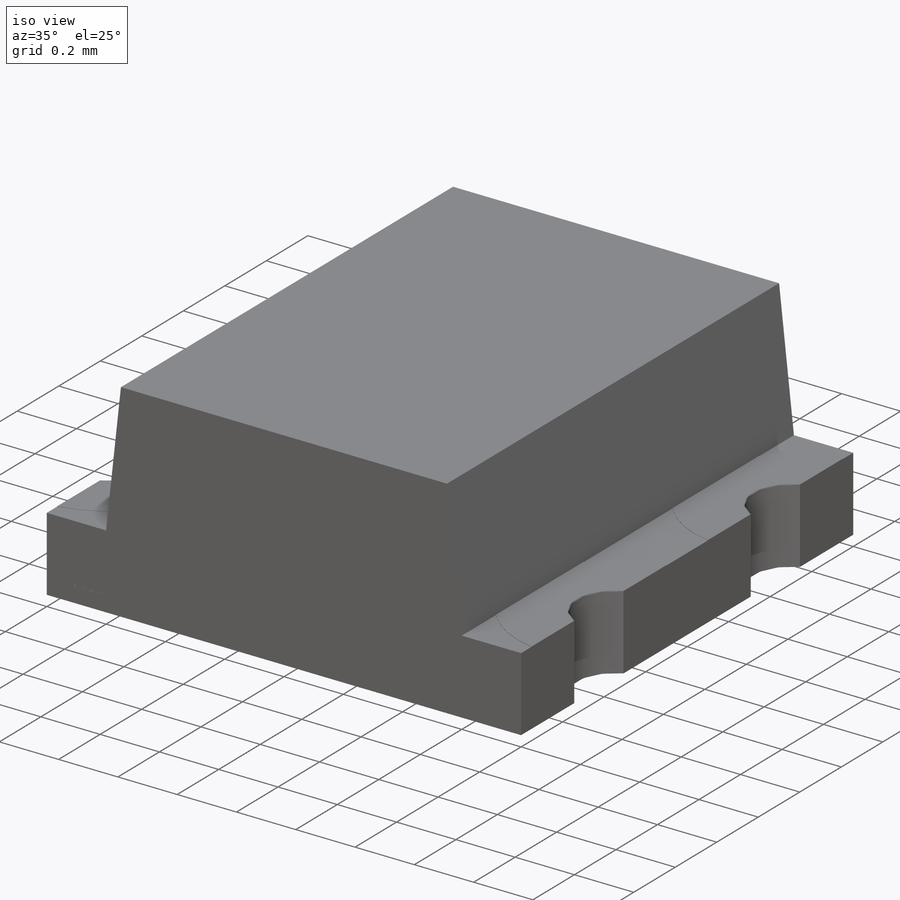
[diagram: iso view]
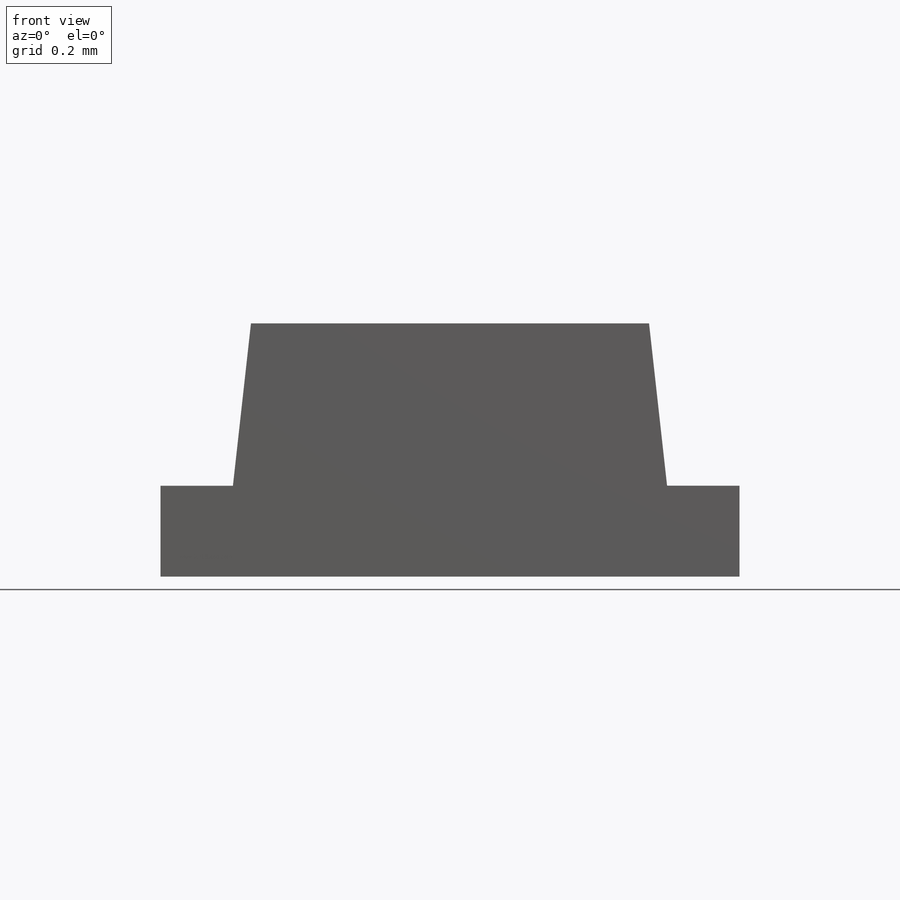
[diagram: front view]
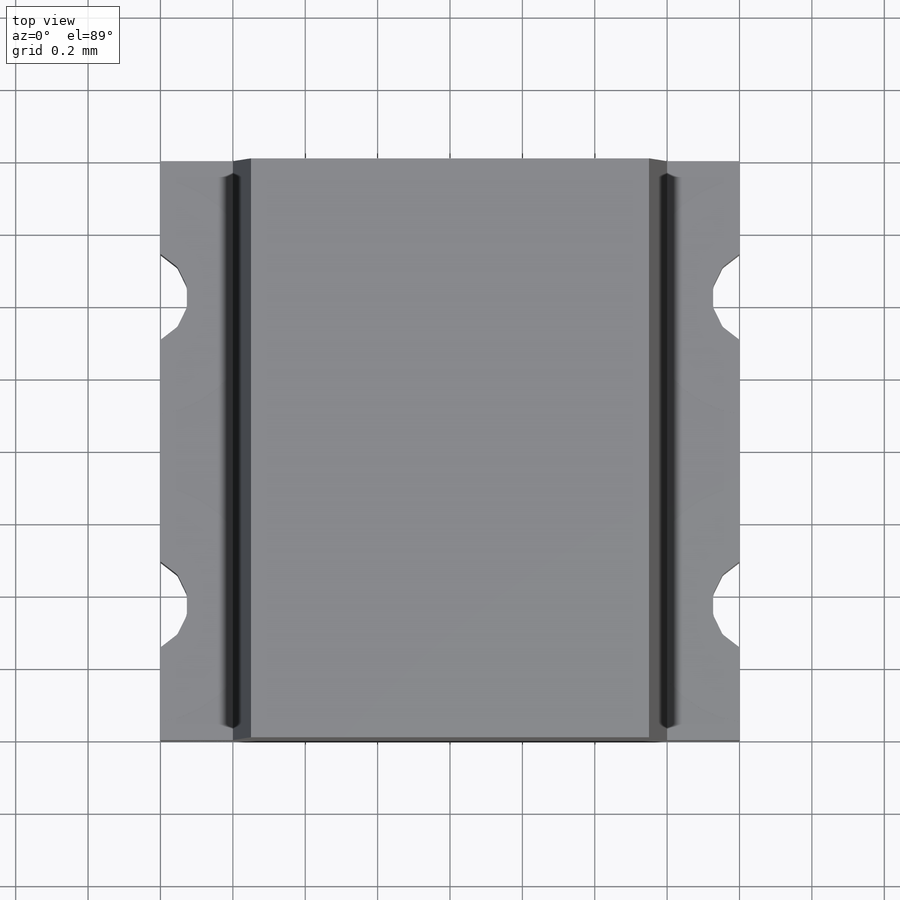
[diagram: top view]
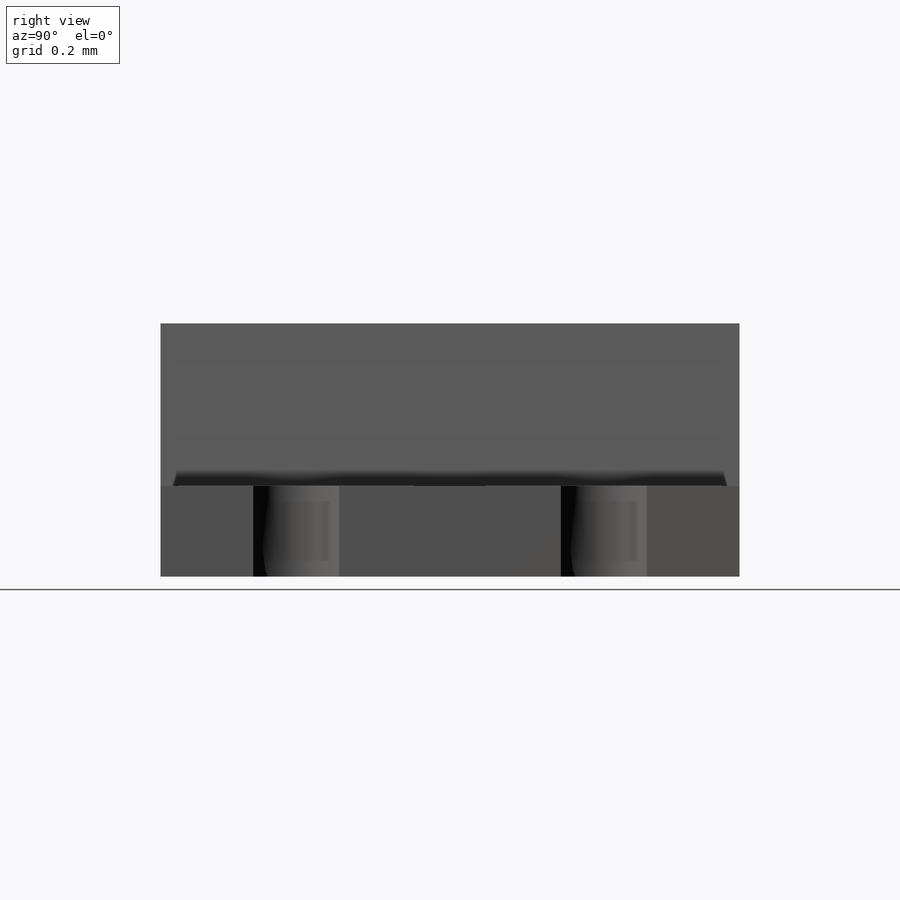
[diagram: right view]
SOLIDWORKS PART (.sldprt)
format: sldprt  version: not decoded by parser v0  size: 634,880 bytes
history: native  units: mm
features: sketch x7, extrude x5, cut_extrude x2, material x1 (+11 scaffold rows collapsed)
feature tree (26):
  scaffold x11  (default folders/planes/origin — collapsed)
  material  "Material <not specified>"
  sketch  "Sketch1"  dims[D1=0.25mm D2=1.6mm D3=1.1mm D4=1.2mm D5=0.7mm]
  extrude  "Extrude1"  Depth=1.6mm
  extrude  "Extrude2"  [1 undecoded]
  sketch  "Sketch1<3>"  dims[D1=1.6mm]
  sketch  "Sketch2"  dims[c1.D3=0.075mm c1.D1=0.65mm c1.D2=0.35mm c1.D4=0.85mm c2.D1=0.35mm c2.D2=0.65mm c2.D3=0.05mm]
  extrude  "Extrude3"  Depth=0.01mm
  extrude  "Extrude4"  [1 undecoded]
  sketch  "Sketch2<3>"  dims[D1=0.01mm D2=0.0001mm]
  cut_extrude  "Cut-Extrude2"  [1 undecoded]
  sketch  "Sketch2<4>"
  sketch  "Sketch3"  dims[D1=0.25mm D2=0.05mm]
  sketch  "Sketch4"  dims[D3=~0.001019mm D1=0.0mm D2=0.2mm]
  extrude  "Extrude5"  Depth=0.01mm
  cut_extrude  "Cut-Extrude3"  Depth=0.001mm
decode coverage: 10 of 14 modeling features carry decoded parameters
note: ~ marks probable driven/reference dimensions
note: 3 parameter values undecoded
summary: no parameter record found for 3 features
note: suppression state not decoded; provenance and decode notes live in map.json
